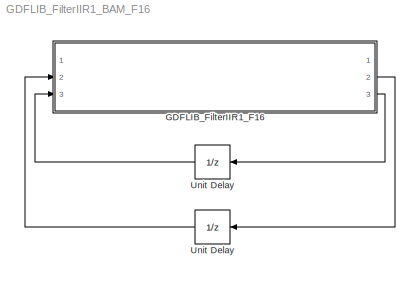
MODEL GDFLIB_FilterIIR1_BAM_F16
KIND model
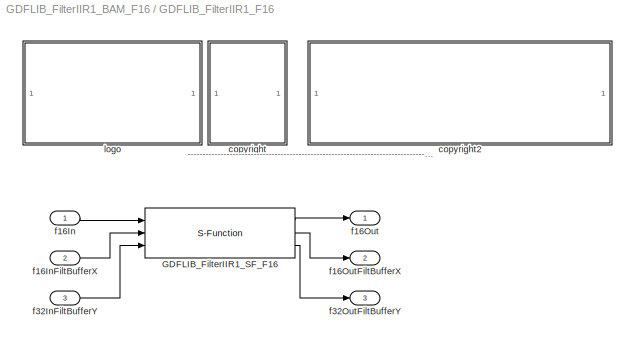
BLOCK [SubSystem] GDFLIB_FilterIIR1_F16
  Ports = [3, 3]
  RequestExecContextInheritance = off
  SID = 1
BLOCK [S-Function] GDFLIB_FilterIIR1_F16/GDFLIB_FilterIIR1_SF_F16
  EnableBusSupport = off
  FunctionName = GDFLIB_FilterIIR1_SF_F16
  Parameters = f16B0,f16B1,f16A1
  Ports = [3, 3]
  SID = 5
BLOCK [SubSystem] GDFLIB_FilterIIR1_F16/<copyright redacted>
  Ports = []
  RequestExecContextInheritance = off
  SID = 6
BLOCK [SubSystem] GDFLIB_FilterIIR1_F16/copyright2
  Ports = []
  RequestExecContextInheritance = off
  SID = 7
BLOCK [Inport] GDFLIB_FilterIIR1_F16/f16In
  IconDisplay = Port number
  SID = 2
BLOCK [Inport] GDFLIB_FilterIIR1_F16/f16InFiltBufferX
  IconDisplay = Port number
  Port = 2
  SID = 3
BLOCK [Outport] GDFLIB_FilterIIR1_F16/f16Out
  IconDisplay = Port number
  SID = 9
BLOCK [Outport] GDFLIB_FilterIIR1_F16/f16OutFiltBufferX
  IconDisplay = Port number
  Port = 2
  SID = 10
BLOCK [Inport] GDFLIB_FilterIIR1_F16/f32InFiltBufferY
  IconDisplay = Port number
  Port = 3
  SID = 4
BLOCK [Outport] GDFLIB_FilterIIR1_F16/f32OutFiltBufferY
  IconDisplay = Port number
  Port = 3
  SID = 11
BLOCK [SubSystem] GDFLIB_FilterIIR1_F16/logo
  Ports = []
  RequestExecContextInheritance = off
  SID = 8
BLOCK [UnitDelay] Unit Delay
  SID = 13
  SampleTime = -1
BLOCK [UnitDelay] Unit Delay 
  SID = 14
  SampleTime = -1
ANNOTATION GDFLIB_FilterIIR1_F16: ---------------------------------------------------------------------------------------------------------------------------------------------------------------------------------------------------
LINE GDFLIB_FilterIIR1_F16/GDFLIB_FilterIIR1_SF_F16:1 -> GDFLIB_FilterIIR1_F16/f16Out:1
LINE GDFLIB_FilterIIR1_F16/GDFLIB_FilterIIR1_SF_F16:2 -> GDFLIB_FilterIIR1_F16/f16OutFiltBufferX:1
LINE GDFLIB_FilterIIR1_F16/GDFLIB_FilterIIR1_SF_F16:3 -> GDFLIB_FilterIIR1_F16/f32OutFiltBufferY:1
LINE GDFLIB_FilterIIR1_F16/f16In:1 -> GDFLIB_FilterIIR1_F16/GDFLIB_FilterIIR1_SF_F16:1
LINE GDFLIB_FilterIIR1_F16/f16InFiltBufferX:1 -> GDFLIB_FilterIIR1_F16/GDFLIB_FilterIIR1_SF_F16:2
LINE GDFLIB_FilterIIR1_F16/f32InFiltBufferY:1 -> GDFLIB_FilterIIR1_F16/GDFLIB_FilterIIR1_SF_F16:3
LINE GDFLIB_FilterIIR1_F16:2 -> Unit Delay :1
LINE GDFLIB_FilterIIR1_F16:3 -> Unit Delay:1
LINE Unit Delay :1 -> GDFLIB_FilterIIR1_F16:2
LINE Unit Delay:1 -> GDFLIB_FilterIIR1_F16:3
